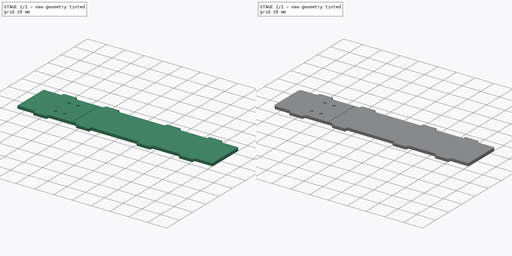
[diagram: build sequence overview — one tinted view per stage of 2, left to right]
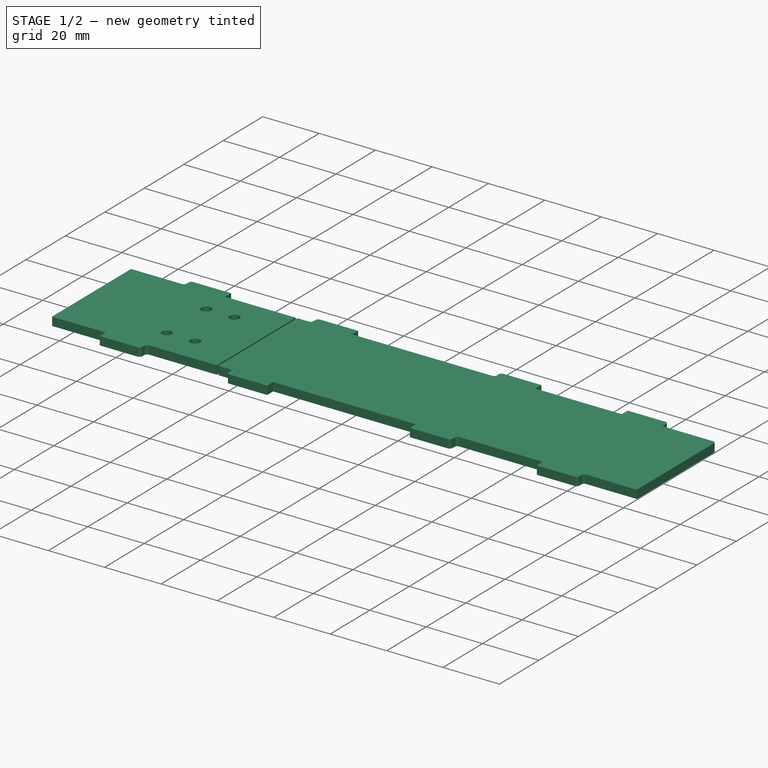
[diagram: stage 1 of 2 — iso view after this stage's code; geometry added in this stage tinted green]
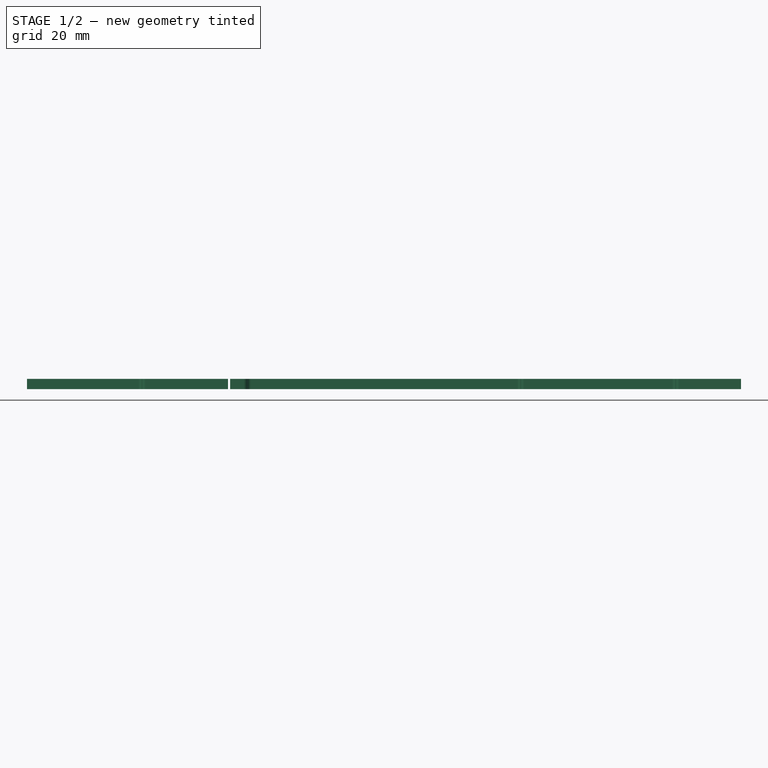
[diagram: stage 1 of 2 — front view after this stage's code; geometry added in this stage tinted green]
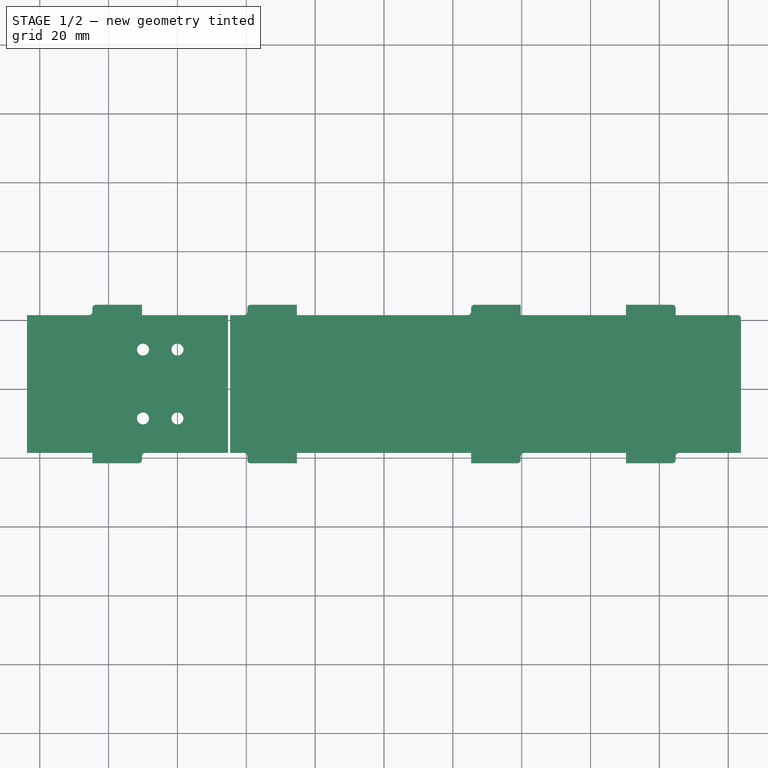
[diagram: stage 1 of 2 — top view after this stage's code; geometry added in this stage tinted green]
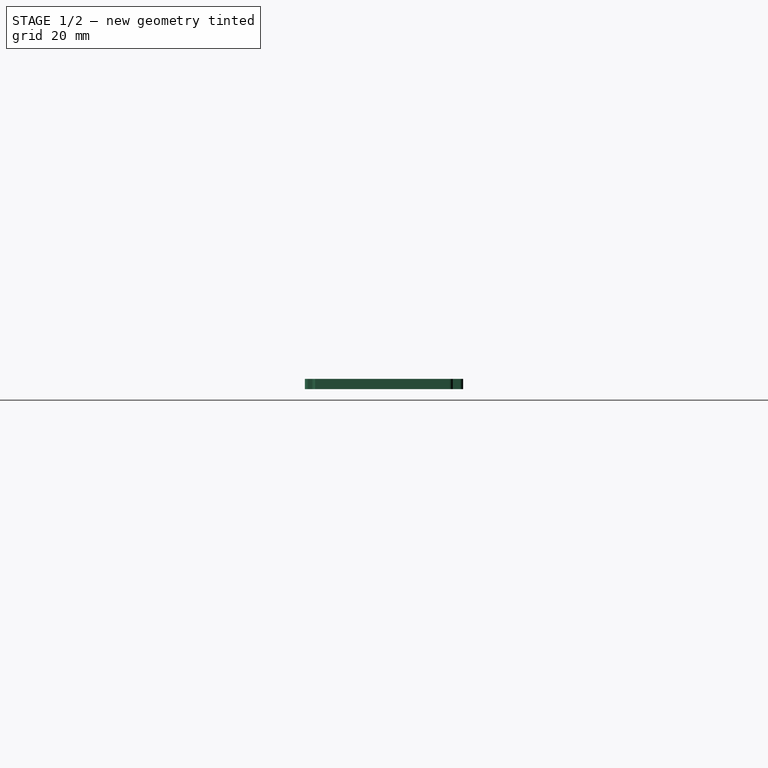
[diagram: stage 1 of 2 — right view after this stage's code; geometry added in this stage tinted green]
FCSTD DOCUMENT
Label: weather_kit_top2
objects: Part::Fillet×2, Sketcher::SketchObject×1, PartDesign::Pad×1, Drawing::FeatureViewPart×1, Drawing::FeaturePage×1
note: 5 computed .brp shape members not serialized (recipe doc carries the construction recipe); baked Part::Feature solids carry a one-line shape summary decoded from their .brp

FEATURE [Sketcher::SketchObject] Sketch
  sketch-geometry (44):
    g0: LineSegment StartX=25.3 StartY=24.474 StartZ=0 EndX=39.7 EndY=24.474 EndZ=0
    g1: LineSegment StartX=39.7 StartY=24.474 StartZ=0 EndX=39.7 EndY=21.474 EndZ=0
    g2: LineSegment StartX=25.3 StartY=21.474 StartZ=0 EndX=25.3 EndY=24.474 EndZ=0
    g3: LineSegment StartX=70.3 StartY=24.474 StartZ=0 EndX=84.7 EndY=24.474 EndZ=0
    g4: LineSegment StartX=84.7 StartY=24.474 StartZ=0 EndX=84.7 EndY=21.474 EndZ=0
    g5: LineSegment StartX=70.3 StartY=21.474 StartZ=0 EndX=70.3 EndY=24.474 EndZ=0
    g6: LineSegment StartX=84.7 StartY=-18.526 StartZ=0 EndX=84.7 EndY=-21.526 EndZ=0
    g7: LineSegment StartX=84.7 StartY=-21.526 StartZ=0 EndX=70.3 EndY=-21.526 EndZ=0
    g8: LineSegment StartX=70.3 StartY=-21.526 StartZ=0 EndX=70.3 EndY=-18.526 EndZ=0
    g9: LineSegment StartX=39.7 StartY=-18.526 StartZ=0 EndX=39.7 EndY=-21.526 EndZ=0
    g10: LineSegment StartX=39.7 StartY=-21.526 StartZ=0 EndX=25.3 EndY=-21.526 EndZ=0
    g11: LineSegment StartX=25.3 StartY=-21.526 StartZ=0 EndX=25.3 EndY=-18.526 EndZ=0
    g12: LineSegment StartX=70.3 StartY=-18.526 StartZ=0 EndX=39.7 EndY=-18.526 EndZ=0
    g13: LineSegment StartX=84.7 StartY=-18.526 StartZ=0 EndX=103.7 EndY=-18.526 EndZ=0
    g14: LineSegment StartX=84.7 StartY=21.474 StartZ=0 EndX=103.7 EndY=21.474 EndZ=0
    g15: LineSegment StartX=39.7 StartY=21.474 StartZ=0 EndX=70.3 EndY=21.474 EndZ=0
    g16: LineSegment StartX=-103.7 StartY=21.474 StartZ=0 EndX=-103.7 EndY=-18.526 EndZ=0
    g17: LineSegment StartX=-70.3 StartY=-18.526 StartZ=0 EndX=-70.3 EndY=-21.526 EndZ=0
    g18: LineSegment StartX=-70.3 StartY=-21.526 StartZ=0 EndX=-84.7 EndY=-21.526 EndZ=0
    g19: LineSegment StartX=-84.7 StartY=-21.526 StartZ=0 EndX=-84.7 EndY=-18.526 EndZ=0
    g20: LineSegment StartX=-25.3 StartY=-18.526 StartZ=0 EndX=-25.3 EndY=-21.526 EndZ=0
    g21: LineSegment StartX=-25.3 StartY=-21.526 StartZ=0 EndX=-39.7 EndY=-21.526 EndZ=0
    g22: LineSegment StartX=-39.7 StartY=-21.526 StartZ=0 EndX=-39.7 EndY=-18.526 EndZ=0
    g23: LineSegment StartX=-84.7 StartY=24.474 StartZ=0 EndX=-70.3 EndY=24.474 EndZ=0
    g24: LineSegment StartX=-70.3 StartY=24.474 StartZ=0 EndX=-70.3 EndY=21.474 EndZ=0
    g25: LineSegment StartX=-84.7 StartY=21.474 StartZ=0 EndX=-84.7 EndY=24.474 EndZ=0
    g26: LineSegment StartX=-39.7 StartY=24.474 StartZ=0 EndX=-25.3 EndY=24.474 EndZ=0
    g27: LineSegment StartX=-25.3 StartY=24.474 StartZ=0 EndX=-25.3 EndY=21.474 EndZ=0
    g28: LineSegment StartX=-39.7 StartY=21.474 StartZ=0 EndX=-39.7 EndY=24.474 EndZ=0
    g29: LineSegment StartX=103.7 StartY=-18.526 StartZ=0 EndX=103.7 EndY=21.474 EndZ=0
    g30: LineSegment StartX=-103.7 StartY=-18.526 StartZ=0 EndX=-84.7 EndY=-18.526 EndZ=0
    g31: LineSegment StartX=-103.7 StartY=21.474 StartZ=0 EndX=-84.7 EndY=21.474 EndZ=0
    g32: LineSegment StartX=-25.3 StartY=-18.526 StartZ=0 EndX=25.3 EndY=-18.526 EndZ=0
    g33: LineSegment StartX=-25.3 StartY=21.474 StartZ=0 EndX=25.3 EndY=21.474 EndZ=0
    g34: LineSegment StartX=-45.3 StartY=-18.526 StartZ=0 EndX=-45.3 EndY=21.474 EndZ=0
    g35: LineSegment StartX=-44.7 StartY=-18.526 StartZ=0 EndX=-44.7 EndY=21.474 EndZ=0
    g36: LineSegment StartX=-70.3 StartY=21.474 StartZ=0 EndX=-45.3 EndY=21.474 EndZ=0
    g37: LineSegment StartX=-44.7 StartY=21.474 StartZ=0 EndX=-39.7 EndY=21.474 EndZ=0
    g38: LineSegment StartX=-70.3 StartY=-18.526 StartZ=0 EndX=-45.3 EndY=-18.526 EndZ=0
    g39: LineSegment StartX=-39.7 StartY=-18.526 StartZ=0 EndX=-44.7 EndY=-18.526 EndZ=0
    g40: Circle CenterX=-70 CenterY=11.474 CenterZ=0 NormalX=0 NormalY=0 NormalZ=1 Radius=1.75
    g41: Circle CenterX=-70 CenterY=-8.52595 CenterZ=0 NormalX=0 NormalY=0 NormalZ=1 Radius=1.75
    g42: Circle CenterX=-60 CenterY=-8.52595 CenterZ=0 NormalX=0 NormalY=0 NormalZ=1 Radius=1.75
    g43: Circle CenterX=-60 CenterY=11.474 CenterZ=0 NormalX=0 NormalY=0 NormalZ=1 Radius=1.75
  constraints (131):
    c: Coincident(g0,g1)
    c: Coincident(g2,g0)
    c: Horizontal(g0)
    c: Vertical(g1)
    c: Vertical(g2)
    c: Coincident(g3,g4)
    c: Coincident(g5,g3)
    c: Horizontal(g3)
    c: Vertical(g4)
    c: Vertical(g5)
    c: Coincident(g6,g7)
    c: Coincident(g7,g8)
    c: Horizontal(g7)
    c: Vertical(g6)
    c: Vertical(g8)
    c: Coincident(g9,g10)
    c: Coincident(g10,g11)
    c: Horizontal(g10)
    c: Vertical(g9)
    c: Vertical(g11)
    c: DistanceY(g9) = -3
    c: DistanceY(g6) = -3
    c: DistanceY(g4) = -3
    c: DistanceY(g1) = -3
    c: DistanceX(g0) = 14.4
    c: DistanceX(g3) = 14.4
    c: DistanceX(g10) = -14.4
    c: DistanceX(g7) = -14.4
    c: DistanceY(g8,g13) = 0
    c: DistanceY(g4,g14) = 0
    c: DistanceX(g4,g14) = 19
    c: DistanceX(g13,g6) = -19
    c: Coincident(g12,g8)
    c: Coincident(g12,g9)
    c: Horizontal(g12)
    c: Coincident(g13,g6)
    c: Horizontal(g13)
    c: Coincident(g14,g4)
    c: Coincident(g15,g1)
    c: Coincident(g15,g5)
    c: Horizontal(g15)
    c: Vertical(g16)
    c: Coincident(g17,g18)
    c: Coincident(g18,g19)
    c: Horizontal(g18)
    c: Vertical(g17)
    c: Vertical(g19)
    c: Coincident(g20,g21)
    c: Coincident(g21,g22)
    c: Horizontal(g21)
    c: Vertical(g20)
    c: Vertical(g22)
    c: Coincident(g23,g24)
    c: Coincident(g25,g23)
    c: Horizontal(g23)
    c: Vertical(g24)
    c: Vertical(g25)
    c: Coincident(g26,g27)
    c: Coincident(g28,g26)
    c: Horizontal(g26)
    c: Vertical(g27)
    c: Vertical(g28)
    c: Coincident(g29,g13)
    c: Coincident(g29,g14)
    c: Vertical(g29)
    c: DistanceY(g29) = 40
    c: DistanceY(g20,g20) = 3
    c: DistanceY(g27) = -3
    c: DistanceY(g19,g16) = 0
    c: DistanceY(g16,g25) = 0
    c: DistanceY(g24) = -3
    c: DistanceY(g17) = -3
    c: DistanceX(g21) = -14.4
    c: DistanceX(g18) = -14.4
    c: DistanceX(g23) = 14.4
    c: DistanceX(g26) = 14.4
    c: Coincident(g30,g16)
    c: Coincident(g30,g19)
    c: Coincident(g31,g16)
    c: Coincident(g31,g25)
    c: Coincident(g32,g20)
    c: Coincident(g32,g11)
    c: Horizontal(g32)
    c: Coincident(g33,g27)
    c: Coincident(g33,g2)
    c: Horizontal(g33)
    c: DistanceY(g27,g20) = -40
    c: DistanceY(g11,g8) = 0
    c: DistanceY(g9,g1) = 40
    c: DistanceY(g28,g22) = -40
    c: DistanceY(g28,g27) = 0
    c: DistanceY(g16,g16) = 40
    c: DistanceY(g16,g17) = 0
    c: DistanceX(g20,g11) = 50.6
    c: DistanceX(g33) = 50.6
    c: DistanceX(g24,g28) = 30.6
    c: DistanceX(g22,g17) = -30.6
    c: DistanceX(g9,g8) = 30.6
    c: DistanceX(g1,g5) = 30.6
    c: DistanceX(g16,g25) = 19
    c: Vertical(g34)
    c: DistanceX(g34,g24) = -25
    c: Vertical(g35)
    c: DistanceX(g35,g28) = 5
    c: Coincident(g36,g24)
    c: Coincident(g36,g34)
    c: Horizontal(g36)
    c: Coincident(g37,g35)
    c: Coincident(g37,g28)
    c: Horizontal(g37)
    c: Coincident(g38,g17)
    c: Coincident(g38,g34)
    c: Horizontal(g38)
    c: Coincident(g39,g22)
    c: Coincident(g39,g35)
    c: Horizontal(g39)
    c: DistanceY(g17,g24) = 40
    c: DistanceY(g34,g35) = 0
    c: Radius(g43) = 1.75
    c: Radius(g42) = 1.75
    c: Radius(g41) = 1.75
    c: Radius(g40) = 1.75
    c: DistanceY(g43,g42) = -20
    c: DistanceX(g41,g42) = 10
    c: DistanceX(g40,g43) = 10
    c: DistanceY(g40,g41) = -20
    c: DistanceY(g41,g42) = 0
    c: DistanceX(g41,g40) = 0
    c: DistanceX(g-1,g2) = 25.3
    c: DistanceX(g-1,g42) = -60
    c: DistanceY(g42,g17) = -10
FEATURE [PartDesign::Pad] Pad
  Length = 3
  Length2 = 100
  Sketch = -> Sketch
  Type = 0
FEATURE [Part::Fillet] Fillet
  Base = -> Pad
  Edges = 16 edges r=1: [Edge2,Edge5,Edge20,Edge23,Edge32,Edge35,Edge44,Edge47,Edge62,Edge65,Edge74,Edge77,Edge92,Edge95,Edge110,Edge113]
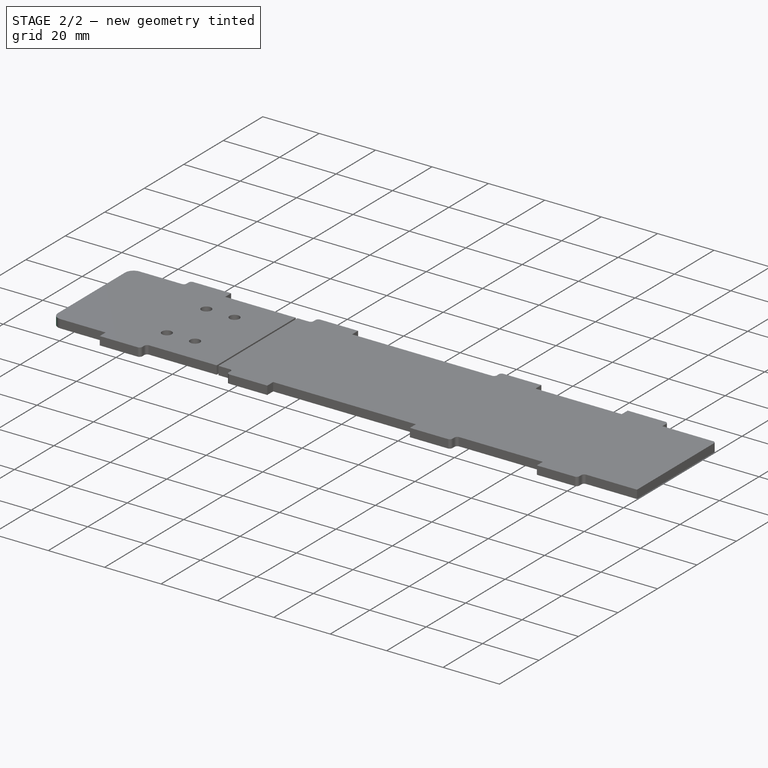
[diagram: stage 2 of 2 — iso view after this stage's code; geometry added in this stage tinted green]
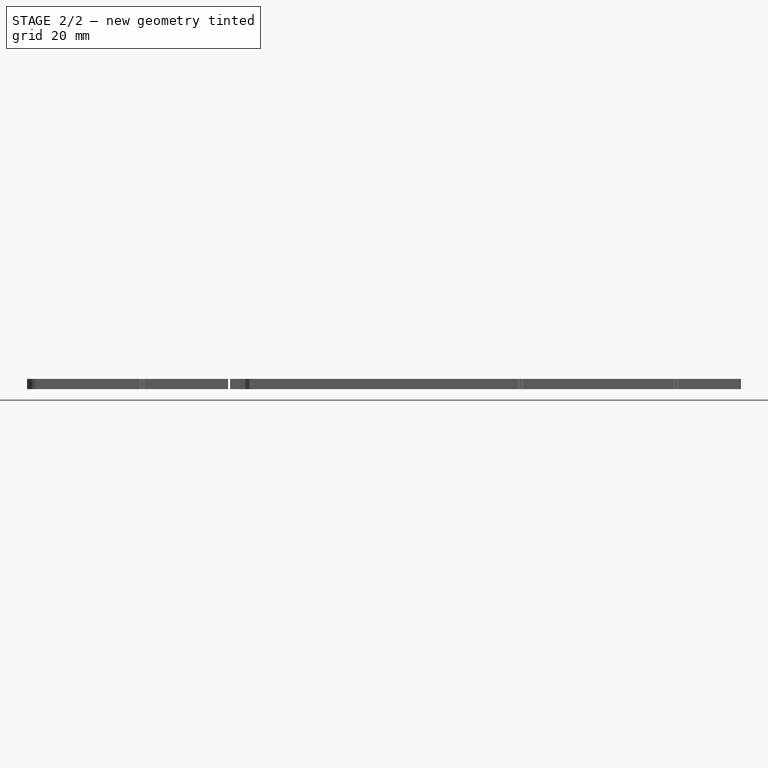
[diagram: stage 2 of 2 — front view after this stage's code; geometry added in this stage tinted green]
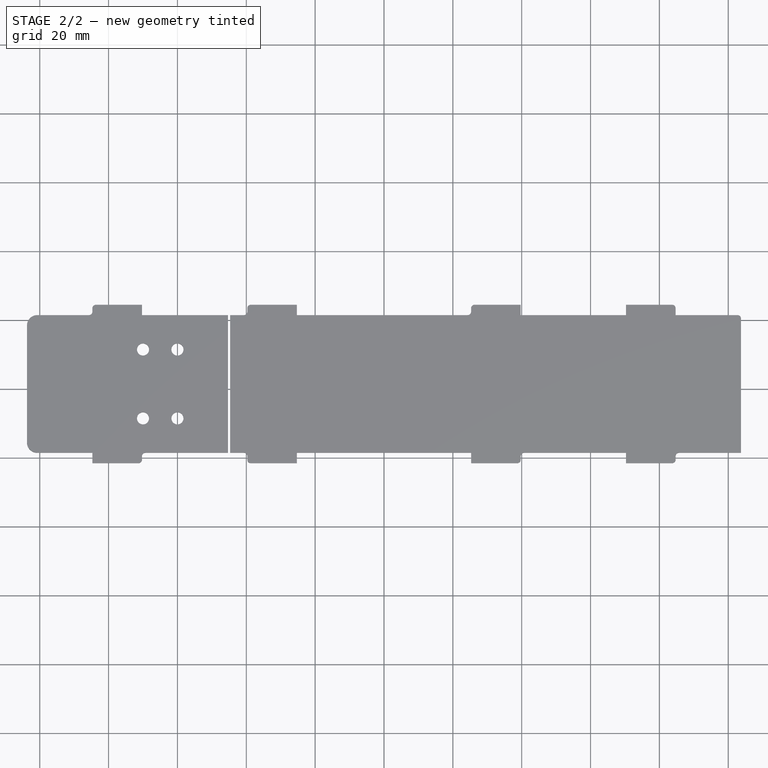
[diagram: stage 2 of 2 — top view after this stage's code; geometry added in this stage tinted green]
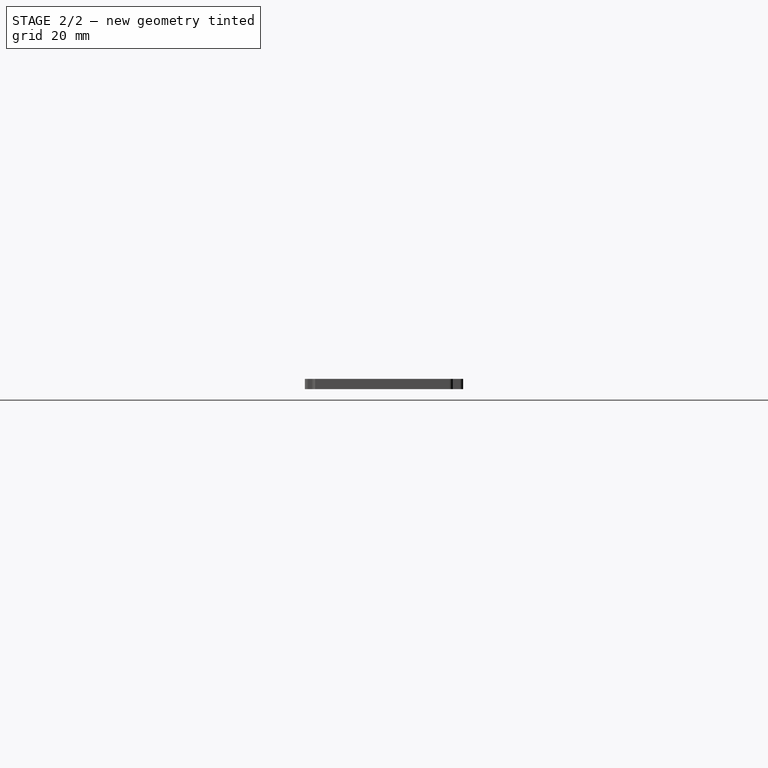
[diagram: stage 2 of 2 — right view after this stage's code; geometry added in this stage tinted green]
FEATURE [Part::Fillet] Fillet001
  Base = -> Fillet
  Edges = 4 edges r=3: [Edge108,Edge110,Edge173,Edge175]
FEATURE [Drawing::FeatureViewPart] View
  Direction = (0,0,1)
  LineWidth = 0.35
  Rotation = 0
  ShowHiddenLines = false
  ShowSmoothLines = false
  Source = -> Fillet001
  Tolerance = 0.05
  ViewResult = <blob: 3461 chars omitted>
  X = 200
  Y = 100
FEATURE [Drawing::FeaturePage] Page
  EditableTexts = AUTHOR NAME | CREATION DATE | SUPERVISOR NAME | CHECK DATE | SCALE | WEIGHT | NUMBER | SHEET | TITLE | SUBTITLE
  Group = -> [View]
  Template = <path>
note: 1 file-system path scrubbed to <path> (originals preserved in the JSON sidecar)
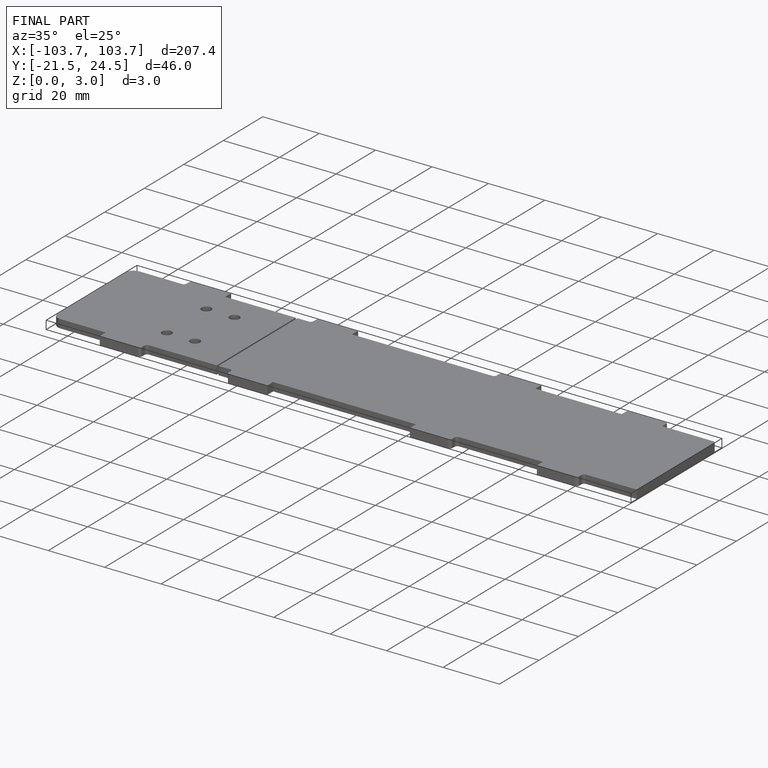
[diagram: finished part — iso view with bounding-box wireframe]
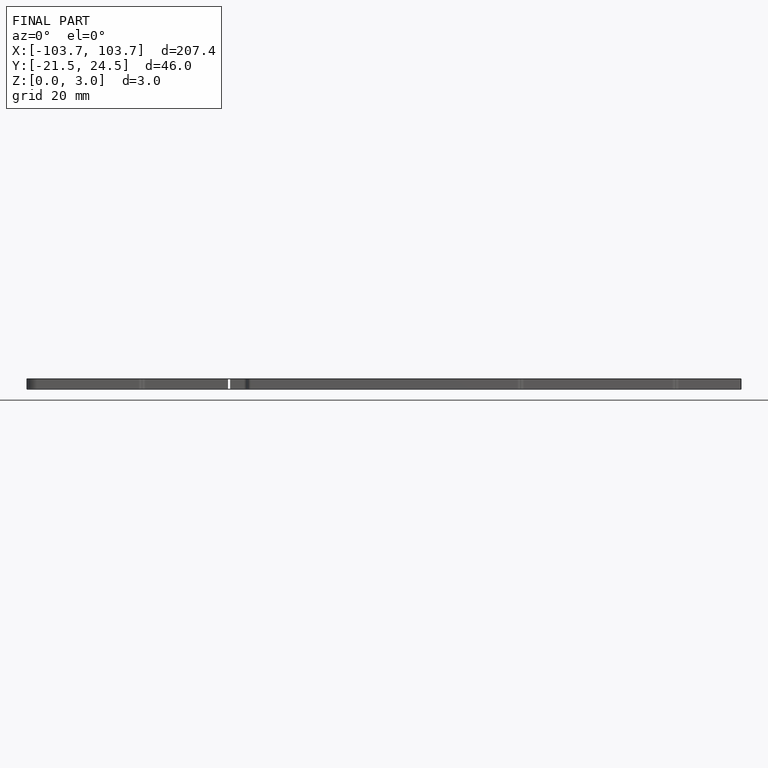
[diagram: finished part — front view with bounding-box wireframe]
